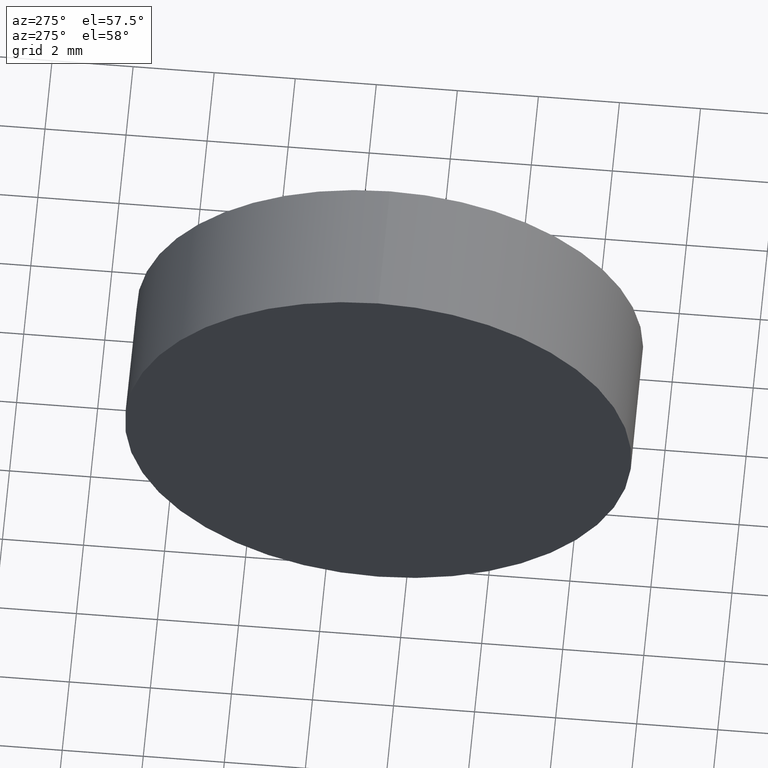
[diagram: clean part render]
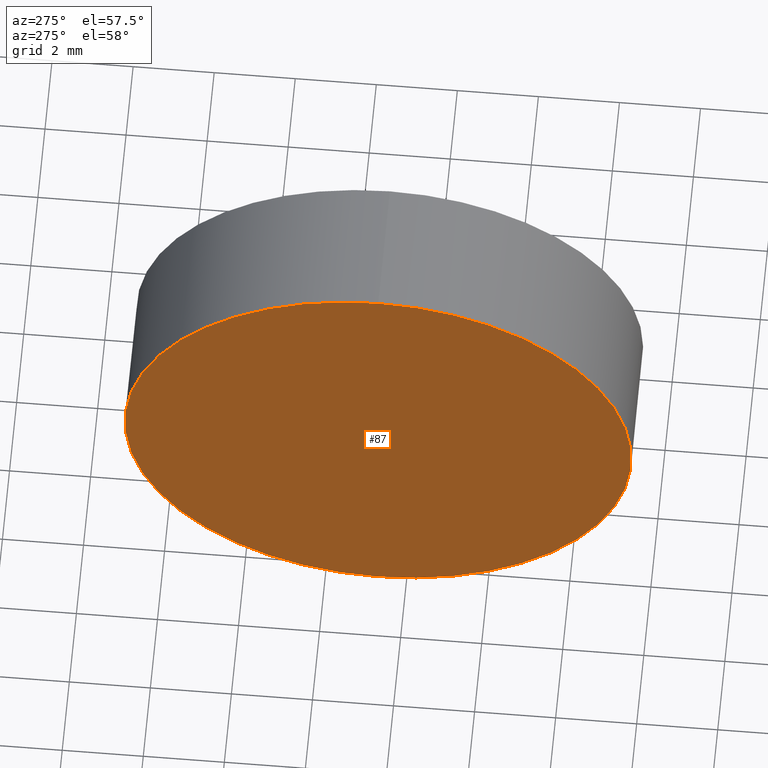
[diagram: same view with one face highlighted and labeled with its STEP entity id]
A machine part, auxiliary view. The second image highlights one B-rep face of the part: STEP entity #87.
In plain terms, the highlighted planar face has unit normal (1, 0, 0).
Its self-contained STEP definition (entity closure, byte-faithful):
#31 = CIRCLE ( 'NONE', #151, 6.249999999999998200 ) ;
#34 = CARTESIAN_POINT ( 'NONE',  ( 57.54632776745975800, 34.68901056168621700, -6.249999999999998200 ) ) ;
#35 = CARTESIAN_POINT ( 'NONE',  ( 57.54632776745975800, 34.68901056168621700, 0.0000000000000000000 ) ) ;
#37 = DIRECTION ( 'NONE',  ( 0.0000000000000000000, 0.0000000000000000000, 1.000000000000000000 ) ) ;
#45 = DIRECTION ( 'NONE',  ( 0.0000000000000000000, 0.0000000000000000000, -1.000000000000000000 ) ) ;
#46 = VERTEX_POINT ( 'NONE', #34 ) ;
#56 = AXIS2_PLACEMENT_3D ( 'NONE', #110, #78, #66 ) ;
#61 = ORIENTED_EDGE ( 'NONE', *, *, #112, .T. ) ;
#66 = DIRECTION ( 'NONE',  ( 0.0000000000000000000, 0.0000000000000000000, 1.000000000000000000 ) ) ;
#74 = DIRECTION ( 'NONE',  ( 1.000000000000000000, 0.0000000000000000000, 0.0000000000000000000 ) ) ;
#77 = ORIENTED_EDGE ( 'NONE', *, *, #115, .T. ) ;
#78 = DIRECTION ( 'NONE',  ( -1.000000000000000000, -0.0000000000000000000, -0.0000000000000000000 ) ) ;
#87 = ADVANCED_FACE ( 'NONE', ( #118 ), #106, .F. ) ;
#97 = CARTESIAN_POINT ( 'NONE',  ( 57.54632776745975800, 34.68901056168621700, 0.0000000000000000000 ) ) ;
#106 = PLANE ( 'NONE',  #153 ) ;
#110 = CARTESIAN_POINT ( 'NONE',  ( 57.54632776745975800, 34.68901056168621700, 0.0000000000000000000 ) ) ;
#112 = EDGE_CURVE ( 'NONE', #46, #162, #31, .T. ) ;
#115 = EDGE_CURVE ( 'NONE', #162, #46, #149, .T. ) ;
#118 = FACE_OUTER_BOUND ( 'NONE', #183, .T. ) ;
#147 = DIRECTION ( 'NONE',  ( -1.000000000000000000, -0.0000000000000000000, -0.0000000000000000000 ) ) ;
#149 = CIRCLE ( 'NONE', #56, 6.249999999999998200 ) ;
#151 = AXIS2_PLACEMENT_3D ( 'NONE', #97, #147, #37 ) ;
#153 = AXIS2_PLACEMENT_3D ( 'NONE', #35, #74, #45 ) ;
#160 = CARTESIAN_POINT ( 'NONE',  ( 57.54632776745975800, 34.68901056168621700, 6.249999999999998200 ) ) ;
#162 = VERTEX_POINT ( 'NONE', #160 ) ;
#183 = EDGE_LOOP ( 'NONE', ( #77, #61 ) ) ;